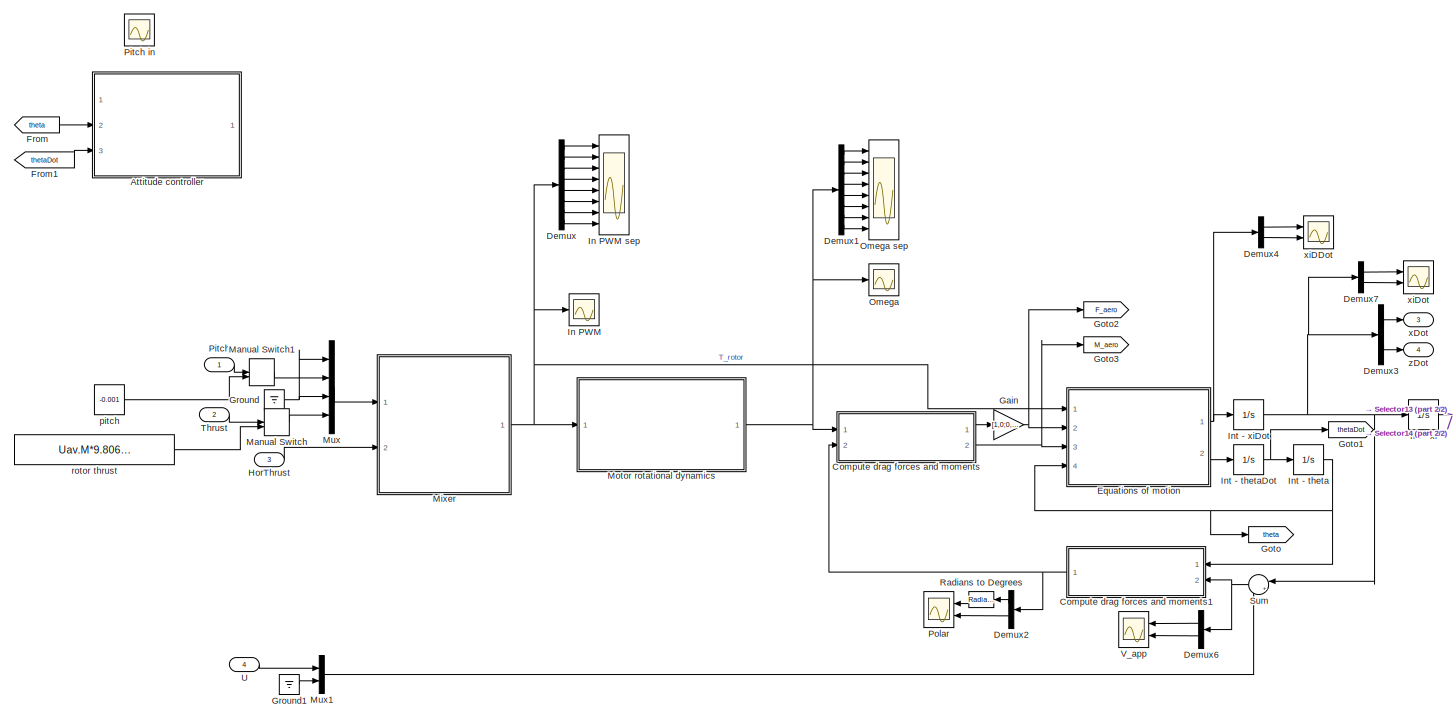
[diagram: root canvas - part 1/2, most of the canvas]
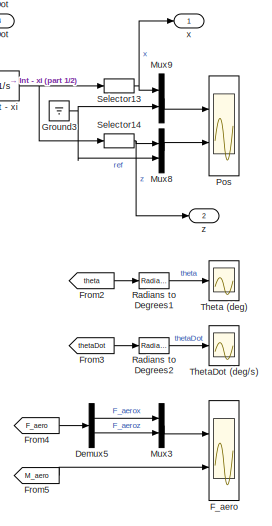
[diagram: root canvas - part 2/2, bottom right region]
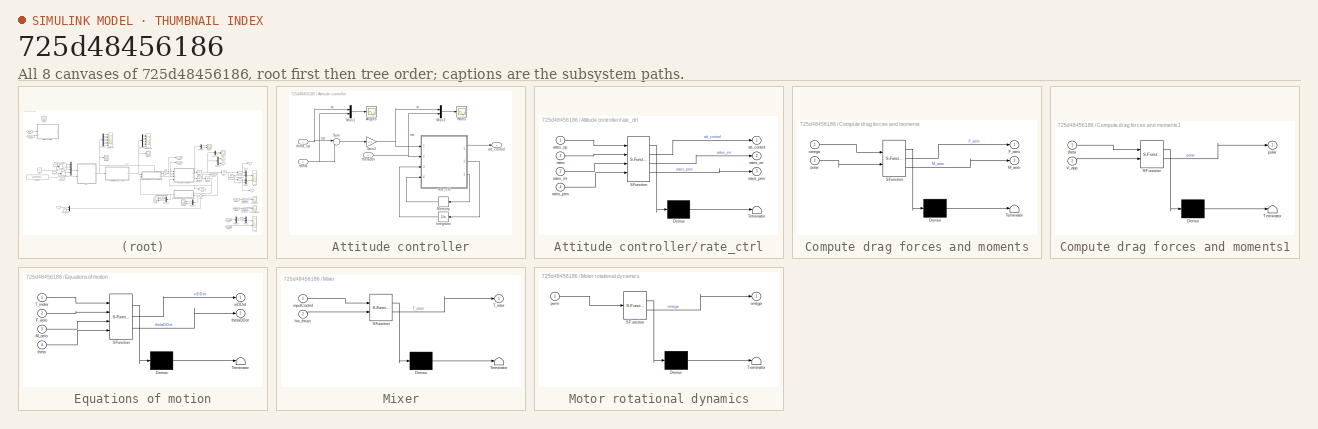
[diagram: thumbnail index - all 8 canvases of the model, root first then tree order]
MODEL slx_725d48456186
KIND model
CONFIG AbsTol = auto
CONFIG EnableMultiTasking = off
CONFIG FixedStep = auto
CONFIG MaxStep = 1e-3
CONFIG MinStep = auto
CONFIG RelTol = 1e-3
CONFIG SampleTimeConstraint = Unconstrained
CONFIG SolverName = VariableStepAuto
CONFIG StartTime = 0.0
CONFIG StopTime = 10
BLOCK [SubSystem] Attitude controller
  Commented = on
  Ports = [3, 1]
  RequestExecContextInheritance = off
BLOCK [Scope] Attitude controller/Angles
  Floating = off
  NumInputPorts = 1
  Ports = [1]
  ScopeSpecificationString = Simulink.scopes.TimeScopeBlockCfg('CurrentConfiguration', extmgr.ConfigurationSet(extmgr.Configuration('Core','General UI',true),extmgr.Configuration('Core','Source UI',true),extmgr.Configuration('Sources','WiredSimulink',true,'DataLoggingVariableName','ScopeData1'),extmgr.Configuration('Visuals','Time Domain',true,'SerializedDisplays',{struct('MinYLimReal','-0.23536','MaxYLimReal','0.79089','YLab...<+1421ch>
BLOCK [Gain] Attitude controller/Gain3
  Gain = 6.5
BLOCK [Integrator] Attitude controller/Integrator
  Ports = [1, 1]
BLOCK [Memory] Attitude controller/Memory
BLOCK [Mux] Attitude controller/Mux1
  DisplayOption = bar
  Inputs = 2
  Ports = [2, 1]
BLOCK [Mux] Attitude controller/Mux3
  DisplayOption = bar
  Inputs = 2
  Ports = [2, 1]
BLOCK [Scope] Attitude controller/Rates
  Floating = off
  NumInputPorts = 1
  Ports = [1]
  ScopeSpecificationString = Simulink.scopes.TimeScopeBlockCfg('CurrentConfiguration', extmgr.ConfigurationSet(extmgr.Configuration('Core','General UI',true),extmgr.Configuration('Core','Source UI',true),extmgr.Configuration('Sources','WiredSimulink',true,'DataLoggingVariableName','ScopeData8'),extmgr.Configuration('Visuals','Time Domain',true,'SerializedDisplays',{struct('MinYLimReal','-3.64952','MaxYLimReal','3.03672','YLab...<+1441ch>
BLOCK [Sum] Attitude controller/Sum
  Inputs = |+-
  Ports = [2, 1]
BLOCK [Outport] Attitude controller/att_control
  VectorParamsAs1DForOutWhenUnconnected = off
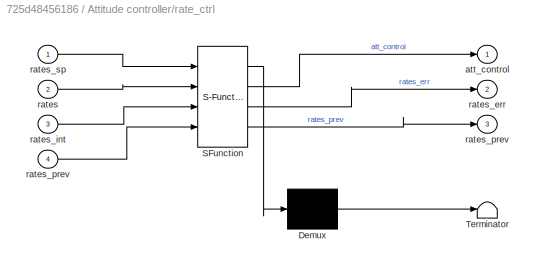
BLOCK [SubSystem] Attitude controller/rate_ctrl
  ErrorFcn = Stateflow.Translate.translate
  PermitHierarchicalResolution = ExplicitOnly
  Ports = [4, 3]
  RequestExecContextInheritance = off
  SFBlockType = MATLAB Function
  SystemSampleTime = 0.002
  TreatAsAtomicUnit = on
BLOCK [Demux] Attitude controller/rate_ctrl/ Demux 
  Outputs = 1
  Ports = [1, 1]
BLOCK [S-Function] Attitude controller/rate_ctrl/ SFunction 
  EnableBusSupport = on
  FunctionName = sf_sfun
  PortCounts = [4 4]
  Ports = [4, 4]
  SFcnIsStateOwnerBlock = off
  SFunctionDeploymentMode = off
  Tag = Stateflow S-Function 1
BLOCK [Terminator] Attitude controller/rate_ctrl/ Terminator 
BLOCK [Outport] Attitude controller/rate_ctrl/att_control
  VectorParamsAs1DForOutWhenUnconnected = off
BLOCK [Inport] Attitude controller/rate_ctrl/rates
  Port = 2
BLOCK [Outport] Attitude controller/rate_ctrl/rates_err
  Port = 2
  VectorParamsAs1DForOutWhenUnconnected = off
BLOCK [Inport] Attitude controller/rate_ctrl/rates_int
  Port = 3
BLOCK [Outport] Attitude controller/rate_ctrl/rates_prev
  Port = 3
  VectorParamsAs1DForOutWhenUnconnected = off
BLOCK [Inport] Attitude controller/rate_ctrl/rates_prev 
  Port = 4
BLOCK [Inport] Attitude controller/rate_ctrl/rates_sp
BLOCK [Inport] Attitude controller/theta
  Port = 2
BLOCK [Inport] Attitude controller/thetaDot
  Port = 3
BLOCK [Inport] Attitude controller/theta_sp
BLOCK [SubSystem] Compute drag forces and moments
  ErrorFcn = Stateflow.Translate.translate
  PermitHierarchicalResolution = ExplicitOnly
  Ports = [2, 2]
  RequestExecContextInheritance = off
  SFBlockType = MATLAB Function
  TreatAsAtomicUnit = on
BLOCK [Demux] Compute drag forces and moments/ Demux 
  Outputs = 1
  Ports = [1, 1]
BLOCK [S-Function] Compute drag forces and moments/ SFunction 
  EnableBusSupport = on
  FunctionName = sf_sfun
  Parameters = Uav
  PortCounts = [2 3]
  Ports = [2, 3]
  SFcnIsStateOwnerBlock = off
  SFunctionDeploymentMode = off
  Tag = Stateflow S-Function 3
BLOCK [Terminator] Compute drag forces and moments/ Terminator 
BLOCK [Outport] Compute drag forces and moments/F_aero
  VectorParamsAs1DForOutWhenUnconnected = off
BLOCK [Outport] Compute drag forces and moments/M_aero
  Port = 2
  VectorParamsAs1DForOutWhenUnconnected = off
BLOCK [Inport] Compute drag forces and moments/omega
BLOCK [Inport] Compute drag forces and moments/polar
  Port = 2
BLOCK [SubSystem] Compute drag forces and moments1
  ErrorFcn = Stateflow.Translate.translate
  NameLocation = top
  PermitHierarchicalResolution = ExplicitOnly
  Ports = [2, 1]
  RequestExecContextInheritance = off
  SFBlockType = MATLAB Function
  TreatAsAtomicUnit = on
BLOCK [Demux] Compute drag forces and moments1/ Demux 
  Outputs = 1
  Ports = [1, 1]
BLOCK [S-Function] Compute drag forces and moments1/ SFunction 
  EnableBusSupport = on
  FunctionName = sf_sfun
  PortCounts = [2 2]
  Ports = [2, 2]
  SFcnIsStateOwnerBlock = off
  SFunctionDeploymentMode = off
  Tag = Stateflow S-Function 10
BLOCK [Terminator] Compute drag forces and moments1/ Terminator 
BLOCK [Inport] Compute drag forces and moments1/V_app
  Port = 2
BLOCK [Outport] Compute drag forces and moments1/polar
  VectorParamsAs1DForOutWhenUnconnected = off
BLOCK [Inport] Compute drag forces and moments1/theta
BLOCK [Demux] Demux
  Outputs = 8
  Ports = [1, 8]
BLOCK [Demux] Demux1
  Outputs = 8
  Ports = [1, 8]
BLOCK [Demux] Demux2
  Outputs = 2
  Ports = [1, 2]
BLOCK [Demux] Demux3
  Outputs = 2
  Ports = [1, 2]
BLOCK [Demux] Demux4
  Outputs = 2
  Ports = [1, 2]
BLOCK [Demux] Demux5
  Outputs = 2
  Ports = [1, 2]
BLOCK [Demux] Demux6
  Outputs = 2
  Ports = [1, 2]
BLOCK [Demux] Demux7
  Outputs = 2
  Ports = [1, 2]
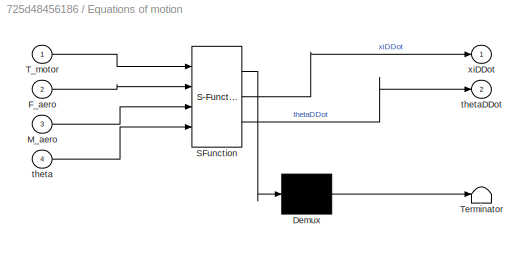
BLOCK [SubSystem] Equations of motion
  ErrorFcn = Stateflow.Translate.translate
  PermitHierarchicalResolution = ExplicitOnly
  Ports = [4, 2]
  RequestExecContextInheritance = off
  SFBlockType = MATLAB Function
  TreatAsAtomicUnit = on
BLOCK [Demux] Equations of motion/ Demux 
  Outputs = 1
  Ports = [1, 1]
BLOCK [S-Function] Equations of motion/ SFunction 
  EnableBusSupport = on
  FunctionName = sf_sfun
  Parameters = Uav
  PortCounts = [4 3]
  Ports = [4, 3]
  SFcnIsStateOwnerBlock = off
  SFunctionDeploymentMode = off
  Tag = Stateflow S-Function 8
BLOCK [Terminator] Equations of motion/ Terminator 
BLOCK [Inport] Equations of motion/F_aero
  Port = 2
BLOCK [Inport] Equations of motion/M_aero
  Port = 3
BLOCK [Inport] Equations of motion/T_motor
BLOCK [Inport] Equations of motion/theta
  Port = 4
BLOCK [Outport] Equations of motion/thetaDDot
  Port = 2
  VectorParamsAs1DForOutWhenUnconnected = off
BLOCK [Outport] Equations of motion/xiDDot
  VectorParamsAs1DForOutWhenUnconnected = off
BLOCK [Scope] F_aero
  Floating = off
  NumInputPorts = 2
  Ports = [2]
  ScopeSpecificationString = Simulink.scopes.TimeScopeBlockCfg('CurrentConfiguration', extmgr.ConfigurationSet(extmgr.Configuration('Core','General UI',true),extmgr.Configuration('Core','Source UI',true),extmgr.Configuration('Sources','WiredSimulink',true,'DataLoggingVariableName','ScopeData3'),extmgr.Configuration('Visuals','Time Domain',true,'SerializedDisplays',{struct('MinYLimReal','-1.19516','MaxYLimReal','0.24241','YLab...<+2078ch>
BLOCK [From] From
  Commented = on
  GotoTag = theta
BLOCK [From] From1
  Commented = on
  GotoTag = thetaDot
BLOCK [From] From2
  GotoTag = theta
BLOCK [From] From3
  GotoTag = thetaDot
BLOCK [From] From4
  GotoTag = F_aero
BLOCK [From] From5
  GotoTag = M_aero
BLOCK [Gain] Gain
  Gain = [1,0;0,1]
  Multiplication = Matrix(K*u)
BLOCK [Goto] Goto
  GotoTag = theta
BLOCK [Goto] Goto1
  GotoTag = thetaDot
BLOCK [Goto] Goto2
  GotoTag = F_aero
BLOCK [Goto] Goto3
  GotoTag = M_aero
BLOCK [Ground] Ground
BLOCK [Ground] Ground1
BLOCK [Ground] Ground3
BLOCK [Inport] HorThrust
  Port = 3
BLOCK [Scope] In PWM
  Floating = off
  NumInputPorts = 1
  Ports = [1]
  ScopeSpecificationString = Simulink.scopes.TimeScopeBlockCfg('CurrentConfiguration', extmgr.ConfigurationSet(extmgr.Configuration('Core','General UI',true),extmgr.Configuration('Core','Source UI',true),extmgr.Configuration('Sources','WiredSimulink',true,'DataLoggingVariableName','ScopeData3'),extmgr.Configuration('Visuals','Time Domain',true,'SerializedDisplays',{struct('MinYLimReal','1.14514','MaxYLimReal','3.14514','YLabe...<+1505ch>
BLOCK [Scope] In PWM sep
  Floating = off
  NumInputPorts = 8
  Ports = [8]
  ScopeSpecificationString = Simulink.scopes.TimeScopeBlockCfg('CurrentConfiguration', extmgr.ConfigurationSet(extmgr.Configuration('Core','General UI',true),extmgr.Configuration('Core','Source UI',true),extmgr.Configuration('Sources','WiredSimulink',true,'DataLoggingVariableName','ScopeData1'),extmgr.Configuration('Visuals','Time Domain',true,'SerializedDisplays',{struct('MinYLimReal','-0.05302','MaxYLimReal','-0.00977','YLa...<+6388ch>
BLOCK [Integrator] Int - theta
  ContinuousStateAttributes = 'theta'
  Ports = [1, 1]
BLOCK [Integrator] Int - thetaDot
  ContinuousStateAttributes = 'thetaDot'
  Ports = [1, 1]
BLOCK [Integrator] Int - xi
  ContinuousStateAttributes = {'x','z'}
  Ports = [1, 1]
BLOCK [Integrator] Int - xiDot
  ContinuousStateAttributes = {'xDot','zDot'}
  Ports = [1, 1]
BLOCK [ManualSwitch] Manual Switch
BLOCK [ManualSwitch] Manual Switch1
BLOCK [SubSystem] Mixer
  ErrorFcn = Stateflow.Translate.translate
  PermitHierarchicalResolution = ExplicitOnly
  Ports = [2, 1]
  RequestExecContextInheritance = off
  SFBlockType = MATLAB Function
  TreatAsAtomicUnit = on
BLOCK [Demux] Mixer/ Demux 
  Outputs = 1
  Ports = [1, 1]
BLOCK [S-Function] Mixer/ SFunction 
  EnableBusSupport = on
  FunctionName = sf_sfun
  PortCounts = [2 2]
  Ports = [2, 2]
  SFcnIsStateOwnerBlock = off
  SFunctionDeploymentMode = off
  Tag = Stateflow S-Function 9
BLOCK [Terminator] Mixer/ Terminator 
BLOCK [Outport] Mixer/T_rotor
  VectorParamsAs1DForOutWhenUnconnected = off
BLOCK [Inport] Mixer/hor_thrust
  Port = 2
BLOCK [Inport] Mixer/inputControl
BLOCK [SubSystem] Motor rotational dynamics
  ErrorFcn = Stateflow.Translate.translate
  PermitHierarchicalResolution = ExplicitOnly
  Ports = [1, 1]
  RequestExecContextInheritance = off
  SFBlockType = MATLAB Function
  TreatAsAtomicUnit = on
BLOCK [Demux] Motor rotational dynamics/ Demux 
  Outputs = 1
  Ports = [1, 1]
BLOCK [S-Function] Motor rotational dynamics/ SFunction 
  EnableBusSupport = on
  FunctionName = sf_sfun
  Parameters = Uav
  PortCounts = [1 2]
  Ports = [1, 2]
  SFcnIsStateOwnerBlock = off
  SFunctionDeploymentMode = off
  Tag = Stateflow S-Function 6
BLOCK [Terminator] Motor rotational dynamics/ Terminator 
BLOCK [Outport] Motor rotational dynamics/omega
  VectorParamsAs1DForOutWhenUnconnected = off
BLOCK [Inport] Motor rotational dynamics/pwm
BLOCK [Mux] Mux
  DisplayOption = bar
  Ports = [4, 1]
BLOCK [Mux] Mux1
  DisplayOption = bar
  Inputs = 2
  Ports = [2, 1]
BLOCK [Mux] Mux3
  DisplayOption = bar
  Inputs = 2
  Ports = [2, 1]
BLOCK [Mux] Mux8
  DisplayOption = bar
  Inputs = 2
  Ports = [2, 1]
BLOCK [Mux] Mux9
  DisplayOption = bar
  Inputs = 2
  Ports = [2, 1]
BLOCK [Scope] Omega
  Floating = off
  NumInputPorts = 1
  Ports = [1]
  ScopeSpecificationString = Simulink.scopes.TimeScopeBlockCfg('CurrentConfiguration', extmgr.ConfigurationSet(extmgr.Configuration('Core','General UI',true),extmgr.Configuration('Core','Source UI',true),extmgr.Configuration('Sources','WiredSimulink',true,'DataLoggingVariableName','ScopeData1'),extmgr.Configuration('Visuals','Time Domain',true,'SerializedDisplays',{struct('MinYLimReal','397.36098','MaxYLimReal','597.36098','Y...<+1667ch>
BLOCK [Scope] Omega sep
  Floating = off
  NumInputPorts = 8
  Ports = [8]
  ScopeSpecificationString = Simulink.scopes.TimeScopeBlockCfg('CurrentConfiguration', extmgr.ConfigurationSet(extmgr.Configuration('Core','General UI',true),extmgr.Configuration('Core','Source UI',true),extmgr.Configuration('Sources','WiredSimulink',true,'DataLoggingVariableName','ScopeData2'),extmgr.Configuration('Visuals','Time Domain',true,'SerializedDisplays',{struct('MinYLimReal','340.08278','MaxYLimReal','517.76858','Y...<+6472ch>
BLOCK [Inport] Pitch
BLOCK [Scope] Pitch in
  Commented = on
  Floating = off
  NumInputPorts = 1
  Ports = [1]
  ScopeSpecificationString = Simulink.scopes.TimeScopeBlockCfg('CurrentConfiguration', extmgr.ConfigurationSet(extmgr.Configuration('Core','General UI',true),extmgr.Configuration('Core','Source UI',true),extmgr.Configuration('Sources','WiredSimulink',true,'DataLoggingVariableName','ScopeData5'),extmgr.Configuration('Visuals','Time Domain',true,'SerializedDisplays',{struct('MinYLimReal','-1.00000','MaxYLimReal','1.00000','YLab...<+1423ch>
BLOCK [Scope] Polar
  Floating = off
  NumInputPorts = 2
  Ports = [2]
  ScopeSpecificationString = Simulink.scopes.TimeScopeBlockCfg('CurrentConfiguration', extmgr.ConfigurationSet(extmgr.Configuration('Core','General UI',true),extmgr.Configuration('Core','Source UI',true),extmgr.Configuration('Sources','WiredSimulink',true,'DataLoggingVariableName','ScopeData4'),extmgr.Configuration('Visuals','Time Domain',true,'SerializedDisplays',{struct('MinYLimReal','-224.95612','MaxYLimReal','224.91447','...<+2041ch>
BLOCK [Scope] Pos
  Floating = off
  NumInputPorts = 2
  Ports = [2]
  ScopeSpecificationString = Simulink.scopes.TimeScopeBlockCfg('CurrentConfiguration', extmgr.ConfigurationSet(extmgr.Configuration('Core','General UI',true),extmgr.Configuration('Core','Source UI',true),extmgr.Configuration('Sources','WiredSimulink',true,'DataLoggingVariableName','ScopeData5'),extmgr.Configuration('Visuals','Time Domain',true,'SerializedDisplays',{struct('MinYLimReal','-19.51026','MaxYLimReal','2.16781','YLa...<+2083ch>
BLOCK [Reference] Radians to Degrees  REF=simulink_extras/Transformations/Radians
to Degrees
  Ports = [1, 1]
  SourceBlock = simulink_extras/Transformations/Radians\nto Degrees
  SourceProductBaseCode = SL
  SourceType = RadiansToDegrees
BLOCK [Reference] Radians to Degrees1  REF=simulink_extras/Transformations/Radians
to Degrees
  NameLocation = top
  Ports = [1, 1]
  SourceBlock = simulink_extras/Transformations/Radians\nto Degrees
  SourceProductBaseCode = SL
  SourceType = RadiansToDegrees
BLOCK [Reference] Radians to Degrees2  REF=simulink_extras/Transformations/Radians
to Degrees
  NameLocation = top
  Ports = [1, 1]
  SourceBlock = simulink_extras/Transformations/Radians\nto Degrees
  SourceProductBaseCode = SL
  SourceType = RadiansToDegrees
BLOCK [Selector] Selector13
  IndexOptions = Index vector (dialog)
  Indices = 1
  InputPortWidth = 2
  OutputSizes = 1
  Ports = [1, 1]
BLOCK [Selector] Selector14
  IndexOptions = Index vector (dialog)
  Indices = 2
  InputPortWidth = 2
  OutputSizes = 1
  Ports = [1, 1]
BLOCK [Sum] Sum
  Inputs = |++
  NameLocation = top
  Ports = [2, 1]
BLOCK [Scope] Theta (deg)
  Floating = off
  NumInputPorts = 1
  Ports = [1]
  ScopeSpecificationString = Simulink.scopes.TimeScopeBlockCfg('CurrentConfiguration', extmgr.ConfigurationSet(extmgr.Configuration('Core','General UI',true),extmgr.Configuration('Core','Source UI',true),extmgr.Configuration('Sources','WiredSimulink',true,'DataLoggingVariableName','ScopeData8'),extmgr.Configuration('Visuals','Time Domain',true,'SerializedDisplays',{struct('MinYLimReal','-71.16073','MaxYLimReal','84.00854','YL...<+1562ch>
BLOCK [Scope] ThetaDot (deg//s)
  Floating = off
  NumInputPorts = 1
  Ports = [1]
  ScopeSpecificationString = Simulink.scopes.TimeScopeBlockCfg('CurrentConfiguration', extmgr.ConfigurationSet(extmgr.Configuration('Core','General UI',true),extmgr.Configuration('Core','Source UI',true),extmgr.Configuration('Sources','WiredSimulink',true,'DataLoggingVariableName','ScopeData2'),extmgr.Configuration('Visuals','Time Domain',true,'SerializedDisplays',{struct('MinYLimReal','-703.46491','MaxYLimReal','703.93063','...<+1573ch>
BLOCK [Inport] Thrust
  Port = 2
BLOCK [Inport] U
  Port = 4
BLOCK [Scope] V_app
  Floating = off
  NumInputPorts = 2
  Ports = [2]
  ScopeSpecificationString = Simulink.scopes.TimeScopeBlockCfg('CurrentConfiguration', extmgr.ConfigurationSet(extmgr.Configuration('Core','General UI',true),extmgr.Configuration('Core','Source UI',true),extmgr.Configuration('Sources','WiredSimulink',true,'DataLoggingVariableName','ScopeData3'),extmgr.Configuration('Visuals','Time Domain',true,'SerializedDisplays',{struct('MinYLimReal','-1.7773','MaxYLimReal','2.4197','YLabel...<+2017ch>
BLOCK [Constant] pitch
  Value = -0.001
BLOCK [Constant] rotor thrust
  Value = Uav.M*9.80665/(8*cos(Uav.ZETA))
BLOCK [Outport] x
  VectorParamsAs1DForOutWhenUnconnected = off
BLOCK [Outport] xDot
  Port = 3
  VectorParamsAs1DForOutWhenUnconnected = off
BLOCK [Scope] xiDDot
  Floating = off
  NumInputPorts = 2
  Ports = [2]
  ScopeSpecificationString = Simulink.scopes.TimeScopeBlockCfg('CurrentConfiguration', extmgr.ConfigurationSet(extmgr.Configuration('Core','General UI',true),extmgr.Configuration('Core','Source UI',true),extmgr.Configuration('Sources','WiredSimulink',true,'DataLoggingVariableName','ScopeData1'),extmgr.Configuration('Visuals','Time Domain',true,'SerializedDisplays',{struct('MinYLimReal','-329.19859','MaxYLimReal','36.57762','Y...<+2028ch>
BLOCK [Scope] xiDot
  Floating = off
  NumInputPorts = 2
  Ports = [2]
  ScopeSpecificationString = Simulink.scopes.TimeScopeBlockCfg('CurrentConfiguration', extmgr.ConfigurationSet(extmgr.Configuration('Core','General UI',true),extmgr.Configuration('Core','Source UI',true),extmgr.Configuration('Sources','WiredSimulink',true,'DataLoggingVariableName','ScopeData4'),extmgr.Configuration('Visuals','Time Domain',true,'SerializedDisplays',{struct('MinYLimReal','-0.000000000001','MaxYLimReal','0.00000...<+2028ch>
BLOCK [Outport] z
  Port = 2
  VectorParamsAs1DForOutWhenUnconnected = off
BLOCK [Outport] zDot
  Port = 4
  VectorParamsAs1DForOutWhenUnconnected = off
NET Attitude controller/Gain3:1 -> Attitude controller/Mux3:1, Attitude controller/rate_ctrl:1
LINE Attitude controller/Integrator:1 -> Attitude controller/rate_ctrl:3
LINE Attitude controller/Memory:1 -> Attitude controller/rate_ctrl:4
LINE Attitude controller/Mux1:1 -> Attitude controller/Angles:1
LINE Attitude controller/Mux3:1 -> Attitude controller/Rates:1
LINE Attitude controller/Sum:1 -> Attitude controller/Gain3:1
LINE Attitude controller/rate_ctrl:1 -> Attitude controller/att_control:1
LINE Attitude controller/rate_ctrl:2 -> Attitude controller/Integrator:1
LINE Attitude controller/rate_ctrl:3 -> Attitude controller/Memory:1
NET Attitude controller/theta:1 -> Attitude controller/Mux1:2, Attitude controller/Sum:2
NET Attitude controller/thetaDot:1 -> Attitude controller/Mux3:2, Attitude controller/rate_ctrl:2
NET Attitude controller/theta_sp:1 -> Attitude controller/Mux1:1, Attitude controller/Sum:1
NET Compute drag forces and moments1:1 -> Compute drag forces and moments:2, Demux2:1
LINE Compute drag forces and moments:1 -> Gain:1
NET Compute drag forces and moments:2 -> Equations of motion:3, Goto3:1
LINE Demux1:1 -> Omega sep:1
LINE Demux1:2 -> Omega sep:2
LINE Demux1:3 -> Omega sep:3
LINE Demux1:4 -> Omega sep:4
LINE Demux1:5 -> Omega sep:5
LINE Demux1:6 -> Omega sep:6
LINE Demux1:7 -> Omega sep:7
LINE Demux1:8 -> Omega sep:8
LINE Demux2:1 -> Radians to Degrees:1
LINE Demux2:2 -> Polar:2
LINE Demux3:1 -> xDot:1
LINE Demux3:2 -> zDot:1
LINE Demux4:1 -> xiDDot:1
LINE Demux4:2 -> xiDDot:2
LINE Demux5:1 -> Mux3:1
LINE Demux5:2 -> Mux3:2
LINE Demux6:1 -> V_app:1
LINE Demux6:2 -> V_app:2
LINE Demux7:1 -> xiDot:1
LINE Demux7:2 -> xiDot:2
LINE Demux:1 -> In PWM sep:1
LINE Demux:2 -> In PWM sep:2
LINE Demux:3 -> In PWM sep:3
LINE Demux:4 -> In PWM sep:4
LINE Demux:5 -> In PWM sep:5
LINE Demux:6 -> In PWM sep:6
LINE Demux:7 -> In PWM sep:7
LINE Demux:8 -> In PWM sep:8
NET Equations of motion:1 -> Demux4:1, Int - xiDot:1
LINE Equations of motion:2 -> Int - thetaDot:1
LINE From1:1 -> Attitude controller:3
LINE From2:1 -> Radians to Degrees1:1
LINE From3:1 -> Radians to Degrees2:1
LINE From4:1 -> Demux5:1
LINE From5:1 -> F_aero:2
LINE From:1 -> Attitude controller:2
NET Gain:1 -> Equations of motion:2, Goto2:1
LINE Ground1:1 -> Mux1:2
NET Ground3:1 -> Mux8:2, Mux9:2
NET Ground:1 -> Mux:1, Mux:3
LINE HorThrust:1 -> Mixer:2
NET Int - theta:1 -> Compute drag forces and moments1:1, Equations of motion:4, Goto:1
NET Int - thetaDot:1 -> Goto1:1, Int - theta:1
NET Int - xi:1 -> Selector13:1, Selector14:1
NET Int - xiDot:1 -> Demux3:1, Demux7:1, Int - xi:1, Sum:1
LINE Manual Switch1:1 -> Mux:2
LINE Manual Switch:1 -> Mux:4
NET Mixer:1 -> Demux:1, Equations of motion:1, In PWM:1, Motor rotational dynamics:1
NET Motor rotational dynamics:1 -> Compute drag forces and moments:1, Demux1:1, Omega:1
LINE Mux1:1 -> Sum:2
LINE Mux3:1 -> F_aero:1
LINE Mux8:1 -> Pos:2
LINE Mux9:1 -> Pos:1
LINE Mux:1 -> Mixer:1
LINE Pitch:1 -> Manual Switch1:1
LINE Radians to Degrees1:1 -> Theta (deg):1
LINE Radians to Degrees2:1 -> ThetaDot (deg//s):1
LINE Radians to Degrees:1 -> Polar:1
NET Selector13:1 -> Mux9:1, x:1
NET Selector14:1 -> Mux8:1, z:1
NET Sum:1 -> Compute drag forces and moments1:2, Demux6:1
LINE Thrust:1 -> Manual Switch:1
LINE U:1 -> Mux1:1
LINE pitch:1 -> Manual Switch1:2
LINE rotor thrust:1 -> Manual Switch:2
note: NET lines group one-source signal fan-out (src -> all destinations, sorted); 1:1 wires keep LINE
CHART Attitude controller/rate_ctrl states=1 transitions=1
  STATE_LABEL 'eML_blk_kernel()'
  STATE_LABEL 'SCRIPT:\nfunction [ att_control, rates_err, rates_prev ] = rate_ctrl(rates_sp, rates, rates_int, rates_prev)\nrates_p = 0.15;\nrates_i = 0.05;\nrates_d = 0.003;\nrate_ff = 0;\n\ndt = 0.002;\n\n% Angular rates error\nrates_err = - rates_sp + rates;\n\n% % Perform the integration using a first order method and do not propaate the result if out of range or invalid\n% rates_int = rates_int +  rates_err * dt;\n\natt_...<+143ch>'
CHART Compute drag forces and moments states=1 transitions=1
  STATE_LABEL 'eML_blk_kernel()'
  STATE_LABEL 'SCRIPT:\nfunction [F_aero, M_aero] = computeAero( omega, polar, Uav )\n%#codegen\n\n% Name variables\nalpha    = -polar(1); % equations assume alpha measured the other way\nU        = polar(2);\nomegaBar = mean(omega);\nrho      = Uav.RHO_AIR;\nD_UAV    = Uav.D_UAV;\nA_UAV    = Uav.A_UAV;\nD_PROP   = Uav.D_PROP;\nA_PROP   = Uav.A_PROP;\nn        = Uav.N_ROTORS;\n\n% Force coefficients\nCxb1 = -0.241*cos(alpha) + ...<+733ch>'
CHART Motor rotational dynamics states=1 transitions=1
  STATE_LABEL 'eML_blk_kernel()'
  STATE_LABEL 'SCRIPT:\nfunction omega = motorRotDynamics( pwm, Uav )\n%#codegen\n\nomega = sqrt( abs(pwm)/(cos(Uav.ZETA)*Uav.C_T) );'
CHART Equations of motion states=1 transitions=1
  STATE_LABEL 'eML_blk_kernel()'
  STATE_LABEL 'SCRIPT:\nfunction [ xiDDot, thetaDDot ] = Octo2DModel( T_motor, F_aero, M_aero, theta, Uav )\n%#codegen\n\n% Name variables\nm_UAV = Uav.M;\nJ_UAV = Uav.J;\nD_UAV = Uav.D_UAV;\nFxb = F_aero(1);\nFzb = F_aero(2);\ng = 9.80665;\nzeta = Uav.ZETA;\n\n% Forces and pitching moment in body frame\nT   = -cos(zeta)*sum(T_motor);\nTxb = 2*sin(zeta)*(T_motor(3) - T_motor(2));\n\nM = cos(zeta)*D_UAV*( ...\n    T_motor(1)*sind(...<+342ch>'
CHART Mixer states=1 transitions=1
  STATE_LABEL 'eML_blk_kernel()'
  STATE_LABEL "SCRIPT:\nfunction T_rotor = mix( inputControl, hor_thrust )\n%#codegen\n    ROTOR_COUNT = 8;\n    a = tand(22.5);\n\n    % Motor map from Jeremy\n    rotors = struct( 'roll_scale',   {-0.383,  0.383, -0.924, -0.383,  0.383,  0.924,  0.924, -0.924}, ...\n                     'pitch_scale',  { 0.924, -0.924,  0.383, -0.924,  0.924, -0.383,  0.383, -0.383}, ...\n                     'yaw_scale',    {-1, -1,  ...<+904ch>"
CHART Compute drag forces and moments1 states=1 transitions=1
  STATE_LABEL 'eML_blk_kernel()'
  STATE_LABEL 'SCRIPT:\nfunction polar   = computeSph( theta, V_app )\n%#codegen\n\nV_appBody = [ cos(theta), -sin(theta); sin(theta), cos(theta) ] * V_app; % CHECK\n\n% alpha = theta since wind is horizontal\npolar = [atan2(V_appBody(2), V_appBody(1)); norm(V_appBody)];'
CHART  states=0 transitions=0
CHART  states=0 transitions=0
CHART  states=0 transitions=0
CHART  states=0 transitions=0
CHART  states=0 transitions=0
CHART  states=0 transitions=0
